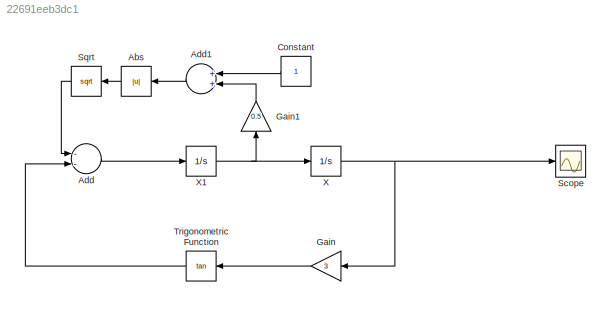
MODEL slx_22691eeb3dc1
KIND model
CONFIG AbsTol = auto
CONFIG EnableMultiTasking = off
CONFIG FixedStep = auto
CONFIG MaxStep = auto
CONFIG MinStep = auto
CONFIG RelTol = 1e-3
CONFIG SampleTimeConstraint = Unconstrained
CONFIG Solver = VariableStepAuto
CONFIG SolverName = VariableStepAuto
CONFIG StartTime = 0.0
CONFIG StopTime = 25
BLOCK [Abs] Abs
  SaturateOnIntegerOverflow = off
BLOCK [Sum] Add
  InputSameDT = off
  Inputs = --
  OutDataTypeStr = Inherit: Inherit via internal rule
  Ports = [2, 1]
  SaturateOnIntegerOverflow = off
BLOCK [Sum] Add1
  InputSameDT = off
  OutDataTypeStr = Inherit: Inherit via internal rule
  Ports = [2, 1]
  SaturateOnIntegerOverflow = off
BLOCK [Constant] Constant
BLOCK [Gain] Gain
  Gain = 3
  OutDataTypeStr = Inherit: Inherit via internal rule
  ParamDataTypeStr = Inherit: Inherit via internal rule
  SaturateOnIntegerOverflow = off
BLOCK [Gain] Gain1
  Gain = 0.5
  OutDataTypeStr = Inherit: Inherit via internal rule
  ParamDataTypeStr = Inherit: Inherit via internal rule
  SaturateOnIntegerOverflow = off
BLOCK [Scope] Scope
  Floating = off
  NumInputPorts = 1
  Ports = [1]
  ScopeSpecificationString = Simulink.scopes.TimeScopeBlockCfg('CurrentConfiguration', extmgr.ConfigurationSet(extmgr.Configuration('Core','General UI',true),extmgr.Configuration('Core','Source UI',true),extmgr.Configuration('Sources','WiredSimulink',true),extmgr.Configuration('Visuals','Time Domain',true,'SerializedDisplays',{struct('MinYLimReal','0.61165','MaxYLimReal','1.04315','YLabelReal','','MinYLimMag','0.61165','MaxYL...<+1376ch>
BLOCK [Sqrt] Sqrt
BLOCK [Trigonometry] Trigonometric Function
  Operator = tan
  Ports = [1, 1]
BLOCK [Integrator] X 
  InitialCondition = 1
  Ports = [1, 1]
BLOCK [Integrator] X1 
  Ports = [1, 1]
LINE Abs:1 -> Sqrt:1
LINE Add1:1 -> Abs:1
LINE Add:1 -> X1 :1
LINE Constant:1 -> Add1:1
LINE Gain1:1 -> Add1:2
LINE Gain:1 -> Trigonometric Function:1
LINE Sqrt:1 -> Add:1
LINE Trigonometric Function:1 -> Add:2
NET X :1 -> Gain:1, Scope:1
NET X1 :1 -> Gain1:1, X :1
note: NET lines group one-source signal fan-out (src -> all destinations, sorted); 1:1 wires keep LINE
